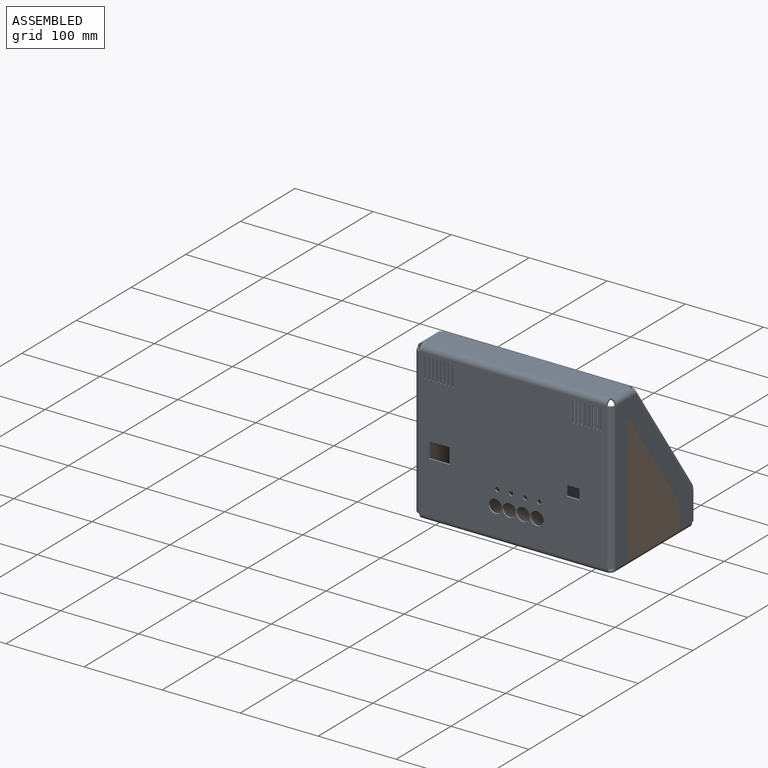
[diagram: assembled view]
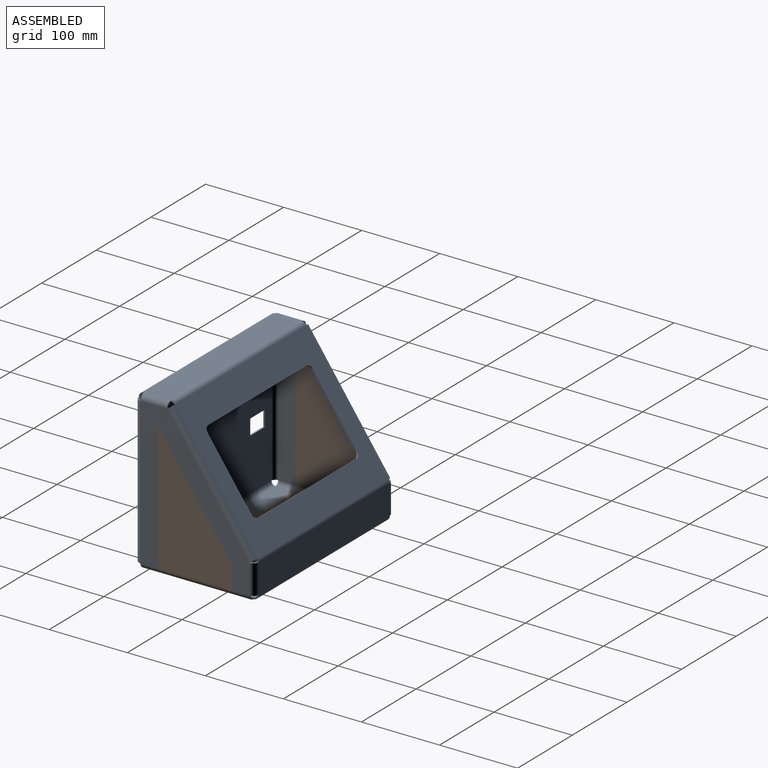
[diagram: assembled view, second angle]
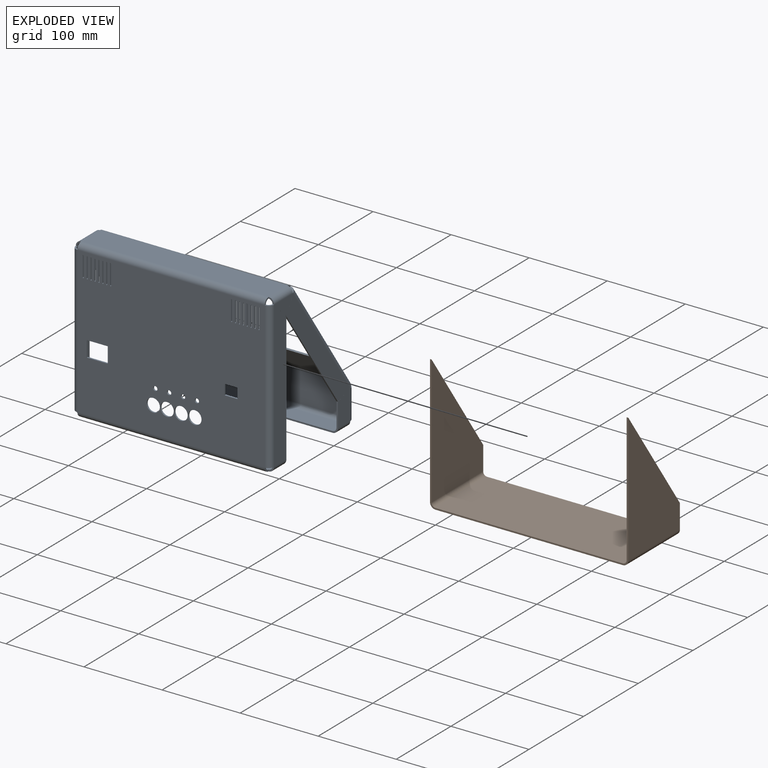
[diagram: exploded view]
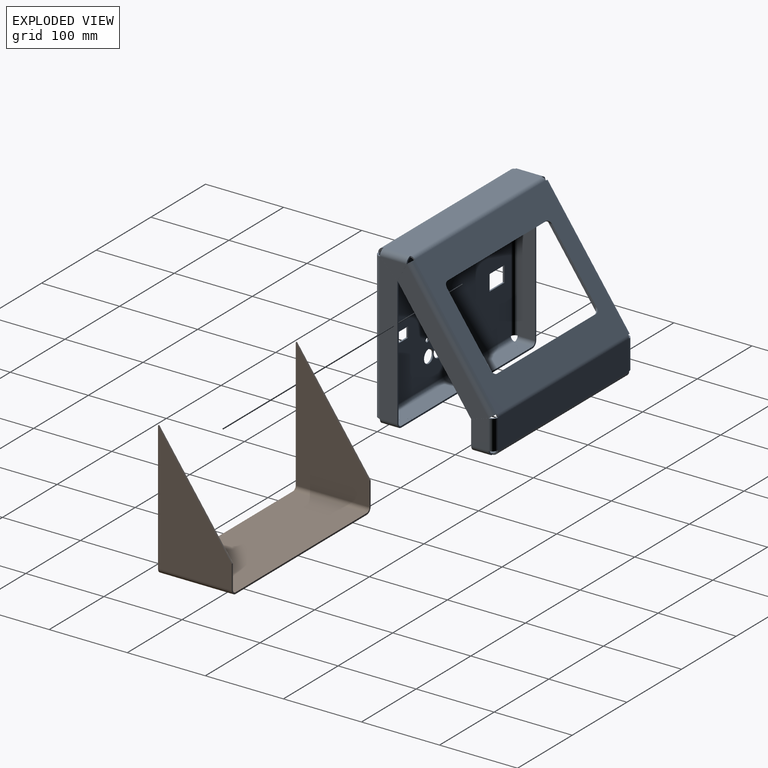
[diagram: exploded view, second angle]
ASSEMBLY  parts=2 mates=3
PART A: 246 faces, bbox 254x153.5x202 mm
  f0: plane 2x0.01mm, normal (0,0,-1), area 0mm2, adj f84,f85,f217,f242
  f1: plane 2x0.01mm, normal (-1,0,0), area 0mm2, adj f84,f85,f200,f216
  f2: plane 25x2mm, normal (1,0,0), area 50mm2, adj f3,f83,f84,f85
  f3: cylinder r=0.75mm len=2mm, axis (0,1,0), area 4.7mm2, adj f2,f4,f84,f85
  f4: plane 25x2mm, normal (-1,0,0), area 50mm2, adj f3,f83,f84,f85
  f5: plane 25x2mm, normal (1,0,0), area 50mm2, adj f6,f82,f84,f85
  f6: cylinder r=0.75mm len=2mm, axis (0,1,0), area 4.7mm2, adj f5,f7,f84,f85
  f7: plane 25x2mm, normal (-1,0,0), area 50mm2, adj f6,f82,f84,f85
  f8: plane 25x2mm, normal (1,0,0), area 50mm2, adj f9,f81,f84,f85
  f9: cylinder r=0.75mm len=2mm, axis (0,1,0), area 4.7mm2, adj f8,f10,f84,f85
  f10: plane 25x2mm, normal (-1,0,0), area 50mm2, adj f9,f81,f84,f85
  f11: plane 25x2mm, normal (1,0,0), area 50mm2, adj f12,f80,f84,f85
  f12: cylinder r=0.75mm len=2mm, axis (0,1,0), area 4.7mm2, adj f11,f13,f84,f85
  f13: plane 25x2mm, normal (-1,0,0), area 50mm2, adj f12,f80,f84,f85
  f14: plane 25x2mm, normal (1,0,0), area 50mm2, adj f15,f79,f84,f85
  f15: cylinder r=0.75mm len=2mm, axis (0,1,0), area 4.7mm2, adj f14,f16,f84,f85
  f16: plane 25x2mm, normal (-1,0,0), area 50mm2, adj f15,f79,f84,f85
  f17: plane 25x2mm, normal (1,0,0), area 50mm2, adj f18,f78,f84,f85
  f18: cylinder r=0.75mm len=2mm, axis (0,1,0), area 4.7mm2, adj f17,f19,f84,f85
  f19: plane 25x2mm, normal (-1,0,0), area 50mm2, adj f18,f78,f84,f85
  f20: plane 25x2mm, normal (1,0,0), area 50mm2, adj f21,f77,f84,f85
  f21: cylinder r=0.75mm len=2mm, axis (0,1,0), area 4.7mm2, adj f20,f22,f84,f85
  f22: plane 25x2mm, normal (-1,0,0), area 50mm2, adj f21,f77,f84,f85
  f23: plane 25x2mm, normal (1,0,0), area 50mm2, adj f24,f76,f84,f85
  f24: cylinder r=0.75mm len=2mm, axis (0,1,0), area 4.7mm2, adj f23,f25,f84,f85
  f25: plane 25x2mm, normal (-1,0,0), area 50mm2, adj f24,f76,f84,f85
  f26: cylinder r=0.75mm len=2mm, axis (0,1,0), area 4.7mm2, adj f27,f75,f84,f85
  f27: plane 25x2mm, normal (1,0,0), area 50mm2, adj f26,f28,f84,f85
  f28: cylinder r=0.75mm len=2mm, axis (0,1,0), area 4.7mm2, adj f27,f75,f84,f85
  f29: plane 25x2mm, normal (-1,0,0), area 50mm2, adj f30,f74,f84,f85
  f30: cylinder r=0.75mm len=2mm, axis (0,1,0), area 4.7mm2, adj f29,f31,f84,f85
  f31: plane 25x2mm, normal (1,0,0), area 50mm2, adj f30,f74,f84,f85
  f32: plane 25x2mm, normal (1,0,0), area 50mm2, adj f33,f73,f84,f85
  f33: cylinder r=0.75mm len=2mm, axis (0,1,0), area 4.7mm2, adj f32,f34,f84,f85
  f34: plane 25x2mm, normal (-1,0,0), area 50mm2, adj f33,f73,f84,f85
  f35: plane 25x2mm, normal (-1,0,0), area 50mm2, adj f36,f72,f84,f85
  f36: cylinder r=0.75mm len=2mm, axis (0,1,0), area 4.7mm2, adj f35,f37,f84,f85
  f37: plane 25x2mm, normal (1,0,0), area 50mm2, adj f36,f72,f84,f85
  f38: plane 13.21x2mm, normal (1,0,0), area 26.4mm2, adj f39,f71,f84,f85
  f39: plane 16.51x2mm, normal (0,0,1), area 33mm2, adj f38,f40,f84,f85
  f40: plane 13.21x2mm, normal (-1,0,0), area 26.4mm2, adj f39,f71,f84,f85
  f41: plane 25x2mm, normal (1,0,0), area 50mm2, adj f42,f70,f84,f85
  f42: cylinder r=0.75mm len=2mm, axis (0,1,0), area 4.7mm2, adj f41,f43,f84,f85
  f43: plane 25x2mm, normal (-1,0,0), area 50mm2, adj f42,f70,f84,f85
  f44: plane 25x2mm, normal (1,0,0), area 50mm2, adj f45,f69,f84,f85
  f45: cylinder r=0.75mm len=2mm, axis (0,1,0), area 4.7mm2, adj f44,f46,f84,f85
  f46: plane 25x2mm, normal (-1,0,0), area 50mm2, adj f45,f69,f84,f85
  f47: plane 25x2mm, normal (-1,0,0), area 50mm2, adj f48,f68,f84,f85
  f48: cylinder r=0.75mm len=2mm, axis (0,1,0), area 4.7mm2, adj f47,f49,f84,f85
  f49: plane 25x2mm, normal (1,0,0), area 50mm2, adj f48,f68,f84,f85
  f50: plane 25x2mm, normal (1,0,0), area 50mm2, adj f51,f67,f84,f85
  f51: cylinder r=0.75mm len=2mm, axis (0,1,0), area 4.7mm2, adj f50,f52,f84,f85
  f52: plane 25x2mm, normal (-1,0,0), area 50mm2, adj f51,f67,f84,f85
  f53: plane 20.2x2mm, normal (1,0,0), area 40.4mm2, adj f54,f66,f84,f85
  f54: plane 26.9x2mm, normal (0,0,1), area 53.8mm2, adj f53,f55,f84,f85
  f55: plane 20.2x2mm, normal (-1,0,0), area 40.4mm2, adj f54,f66,f84,f85
  f56: plane 2x0.01mm, normal (1,0,0), area 0mm2, adj f84,f85,f199,f234
  f57: cylinder r=8.5mm len=17mm, axis (0,1,0), area 106.8mm2, adj f84,f85
  f58: cylinder r=2.75mm len=5.5mm, axis (0,1,0), area 34.6mm2, adj f84,f85
  f59: cylinder r=2.75mm len=5.5mm, axis (0,1,0), area 34.6mm2, adj f84,f85
  f60: cylinder r=2.75mm len=5.5mm, axis (0,1,0), area 34.6mm2, adj f84,f85
  f61: cylinder r=8.5mm len=17mm, axis (0,1,0), area 106.8mm2, adj f84,f85
  f62: cylinder r=8.5mm len=17mm, axis (0,1,0), area 106.8mm2, adj f84,f85
  f63: cylinder r=8.5mm len=17mm, axis (0,1,0), area 106.8mm2, adj f84,f85
  f64: cylinder r=2.75mm len=5.5mm, axis (0,1,0), area 34.6mm2, adj f84,f85
  f65: plane 2x0.01mm, normal (0,0,-1), area 0mm2, adj f84,f85,f233,f243
  f66: plane 26.9x2mm, normal (0,0,-1), area 53.8mm2, adj f53,f55,f84,f85
  f67: cylinder r=0.75mm len=2mm, axis (0,1,0), area 4.7mm2, adj f50,f52,f84,f85
  f68: cylinder r=0.75mm len=2mm, axis (0,1,0), area 4.7mm2, adj f47,f49,f84,f85
  f69: cylinder r=0.75mm len=2mm, axis (0,1,0), area 4.7mm2, adj f44,f46,f84,f85
  f70: cylinder r=0.75mm len=2mm, axis (0,1,0), area 4.7mm2, adj f41,f43,f84,f85
  f71: plane 16.51x2mm, normal (0,0,-1), area 33mm2, adj f38,f40,f84,f85
  f72: cylinder r=0.75mm len=2mm, axis (0,1,0), area 4.7mm2, adj f35,f37,f84,f85
  f73: cylinder r=0.75mm len=2mm, axis (0,1,0), area 4.7mm2, adj f32,f34,f84,f85
  f74: cylinder r=0.75mm len=2mm, axis (0,1,0), area 4.7mm2, adj f29,f31,f84,f85
  f75: plane 25x2mm, normal (-1,0,0), area 50mm2, adj f26,f28,f84,f85
  f76: cylinder r=0.75mm len=2mm, axis (0,1,0), area 4.7mm2, adj f23,f25,f84,f85
  f77: cylinder r=0.75mm len=2mm, axis (0,1,0), area 4.7mm2, adj f20,f22,f84,f85
  f78: cylinder r=0.75mm len=2mm, axis (0,1,0), area 4.7mm2, adj f17,f19,f84,f85
  f79: cylinder r=0.75mm len=2mm, axis (0,1,0), area 4.7mm2, adj f14,f16,f84,f85
  f80: cylinder r=0.75mm len=2mm, axis (0,1,0), area 4.7mm2, adj f11,f13,f84,f85
  f81: cylinder r=0.75mm len=2mm, axis (0,1,0), area 4.7mm2, adj f8,f10,f84,f85
  f82: cylinder r=0.75mm len=2mm, axis (0,1,0), area 4.7mm2, adj f5,f7,f84,f85
  f83: cylinder r=0.75mm len=2mm, axis (0,1,0), area 4.7mm2, adj f2,f4,f84,f85
  f84: plane 240x188mm, normal (0,1,0), area 42727.3mm2, adj f0,f1,f2,f3,f4,f5,f6,f7
  f85: plane 240x188mm, normal (0,-1,0), area 42727.3mm2, adj f0,f1,f2,f3,f4,f5,f6,f7
  f86: plane 2x0.01mm, normal (1,0,0), area 0mm2, adj f90,f91,f195,f199
  f87: plane 2x0.01mm, normal (-1,0,0), area 0mm2, adj f90,f91,f178,f186
  f88: plane 2x0.01mm, normal (-1,0,0), area 0mm2, adj f90,f91,f187,f200
  f89: plane 2x0.01mm, normal (1,0,0), area 0mm2, adj f90,f91,f177,f196
  f90: plane 240x34.36mm, normal (0,0,-1), area 8245.4mm2, adj f86,f87,f88,f89,f180,f189,f198,f202
  f91: plane 240x34.36mm, normal (0,0,1), area 8245.4mm2, adj f86,f87,f88,f89,f179,f188,f197,f201
  f92: plane 1.64x1.16mm, normal (1,0,0), area 0mm2, adj f104,f105,f173,f177
  f93: plane 1.64x1.16mm, normal (-1,0,0), area 0mm2, adj f104,f105,f156,f164
  f94: cylinder r=6.5mm len=6.5mm, axis (0,-0.82,-0.57), area 20.4mm2, adj f95,f103,f104,f105
  f95: plane 179.96x1.64mm, normal (0,0.57,-0.82), area 359.9mm2, adj f94,f96,f104,f105
  f96: cylinder r=6.5mm len=6.5mm, axis (0,-0.82,-0.57), area 20.4mm2, adj f95,f97,f104,f105
  f97: plane 81.23x57.71mm, normal (-1,0,0), area 195.5mm2, adj f96,f98,f104,f105
  f98: cylinder r=6.5mm len=6.5mm, axis (0,-0.82,-0.57), area 20.4mm2, adj f97,f99,f104,f105
  f99: plane 179.96x1.64mm, normal (0,-0.57,0.82), area 359.9mm2, adj f98,f100,f104,f105
  f100: cylinder r=6.5mm len=6.5mm, axis (0,-0.82,-0.57), area 20.4mm2, adj f99,f103,f104,f105
  f101: plane 1.64x1.16mm, normal (-1,0,0), area 0mm2, adj f104,f105,f165,f178
  f102: plane 1.64x1.16mm, normal (1,0,0), area 0mm2, adj f104,f105,f155,f174
  f103: plane 81.23x57.71mm, normal (1,0,0), area 195.5mm2, adj f94,f100,f104,f105
  f104: plane 240x150.21mm, normal (0,-0.82,-0.57), area 22672.6mm2, adj f92,f93,f94,f95,f96,f97,f98,f99
  f105: plane 240x150.21mm, normal (0,0.82,0.57), area 22672.6mm2, adj f92,f93,f94,f95,f96,f97,f98,f99
  f106: plane 2x0.01mm, normal (0,0,-1), area 0mm2, adj f110,f111,f143,f151
  f107: plane 2x0.01mm, normal (1,0,0), area 0mm2, adj f110,f111,f142,f155
  f108: plane 2x0.01mm, normal (-1,0,0), area 0mm2, adj f110,f111,f126,f156
  f109: plane 2x0.01mm, normal (0,0,-1), area 0mm2, adj f110,f111,f125,f152
  f110: plane 240x37.79mm, normal (0,-1,0), area 9070.3mm2, adj f106,f107,f108,f109,f128,f145,f154,f158
  f111: plane 240x37.79mm, normal (0,1,0), area 9070.3mm2, adj f106,f107,f108,f109,f127,f144,f153,f157
  f112: plane 2x0.01mm, normal (0,0,-1), area 0mm2, adj f115,f116,f121,f125
  f113: plane 30.69x2mm, normal (0,-1,0), area 61.4mm2, adj f114,f115,f116,f122
  f114: plane 22.5x7.09mm, normal (0,-0.3,0.95), area 47.2mm2, adj f113,f115,f116,f126
  f115: plane 37.78x22.5mm, normal (1,0,0), area 770.3mm2, adj f112,f113,f114,f124,f128
  f116: plane 37.78x22.5mm, normal (-1,0,0), area 770.3mm2, adj f112,f113,f114,f123,f127
  f117: plane 22.49x22.49mm, normal (0.71,0.71,0), area 63.6mm2, adj f118,f119,f120,f121
  f118: plane 22.49x2mm, normal (0,-1,0), area 45mm2, adj f117,f119,f120,f122
  f119: plane 22.49x22.49mm, normal (0,0,1), area 252.8mm2, adj f117,f118,f124
  f120: plane 22.49x22.49mm, normal (0,0,-1), area 252.8mm2, adj f117,f118,f123
  f121: plane 7x7mm, normal (0,1,0), area 18.8mm2, adj f112,f117,f123,f124
  f122: plane 7x7mm, normal (0,-1,0), area 18.8mm2, adj f113,f118,f123,f124
  f123: cylinder r=7mm len=22.49mm, axis (0,1,0), area 247.2mm2, adj f116,f120,f121,f122
  f124: cylinder r=5mm len=22.49mm, axis (0,1,0), area 176.6mm2, adj f115,f119,f121,f122
  f125: plane 7x7mm, normal (0,0,-1), area 18.8mm2, adj f109,f112,f127,f128
  f126: plane 7x7mm, normal (0,0,1), area 18.8mm2, adj f108,f114,f127,f128
  f127: cylinder r=7mm len=37.78mm, axis (0,0,-1), area 415.4mm2, adj f111,f116,f125,f126
  f128: cylinder r=5mm len=37.78mm, axis (0,0,-1), area 296.7mm2, adj f110,f115,f125,f126
  f129: plane 30.69x2mm, normal (0,-1,0), area 61.4mm2, adj f130,f132,f133,f138
  f130: plane 22.5x7.09mm, normal (0,-0.3,0.95), area 47.2mm2, adj f129,f132,f133,f142
  f131: plane 2x0.01mm, normal (0,0,-1), area 0mm2, adj f132,f133,f139,f143
  f132: plane 37.78x22.5mm, normal (-1,0,0), area 770.3mm2, adj f129,f130,f131,f141,f145
  f133: plane 37.78x22.5mm, normal (1,0,0), area 770.3mm2, adj f129,f130,f131,f140,f144
  f134: plane 22.49x2mm, normal (0,-1,0), area 45mm2, adj f135,f136,f137,f138
  f135: plane 22.49x22.49mm, normal (-0.71,0.71,0), area 63.6mm2, adj f134,f136,f137,f139
  f136: plane 22.49x22.49mm, normal (0,0,1), area 252.8mm2, adj f134,f135,f141
  f137: plane 22.49x22.49mm, normal (0,0,-1), area 252.8mm2, adj f134,f135,f140
  f138: plane 7x7mm, normal (0,-1,0), area 18.8mm2, adj f129,f134,f140,f141
  f139: plane 7x7mm, normal (0,1,0), area 18.8mm2, adj f131,f135,f140,f141
  f140: cylinder r=7mm len=22.49mm, axis (0,-1,0), area 247.2mm2, adj f133,f137,f138,f139
  f141: cylinder r=5mm len=22.49mm, axis (0,-1,0), area 176.6mm2, adj f132,f136,f138,f139
  f142: plane 7x7mm, normal (0,0,1), area 18.8mm2, adj f107,f130,f144,f145
  f143: plane 7x7mm, normal (0,0,-1), area 18.8mm2, adj f106,f131,f144,f145
  f144: cylinder r=7mm len=37.78mm, axis (0,0,1), area 415.4mm2, adj f111,f133,f142,f143
  f145: cylinder r=5mm len=37.78mm, axis (0,0,1), area 296.7mm2, adj f110,f132,f142,f143
  f146: plane 194.97x2mm, normal (0,-1,0), area 389.9mm2, adj f147,f148,f149,f150
  f147: plane 22.5x22.5mm, normal (0.71,-0.71,0), area 63.6mm2, adj f146,f149,f150,f151
  f148: plane 22.5x22.5mm, normal (-0.71,-0.71,0), area 63.6mm2, adj f146,f149,f150,f152
  f149: plane 239.97x22.5mm, normal (0,0,1), area 4893.1mm2, adj f146,f147,f148,f154
  f150: plane 239.97x22.5mm, normal (0,0,-1), area 4893.1mm2, adj f146,f147,f148,f153
  f151: plane 7x7mm, normal (1,0,0), area 18.8mm2, adj f106,f147,f153,f154
  f152: plane 7x7mm, normal (-1,0,0), area 18.8mm2, adj f109,f148,f153,f154
  f153: cylinder r=7mm len=239.97mm, axis (1,0,0), area 2638.6mm2, adj f111,f150,f151,f152
  f154: cylinder r=5mm len=239.97mm, axis (1,0,0), area 1884.7mm2, adj f110,f149,f151,f152
  f155: plane 4.02x2.9mm, normal (1,0,0), area 7.3mm2, adj f102,f107,f157,f158
  f156: plane 4.02x2.9mm, normal (-1,0,0), area 7.3mm2, adj f93,f108,f157,f158
  f157: cylinder r=7mm len=240mm, axis (1,0,0), area 1026.3mm2, adj f105,f111,f155,f156
  f158: cylinder r=5mm len=240mm, axis (1,0,0), area 733mm2, adj f104,f110,f155,f156
  f159: plane 134.78x94.38mm, normal (0,-0.82,-0.57), area 329.1mm2, adj f160,f161,f162,f163
  f160: plane 22.5x7.09mm, normal (0,0.3,-0.95), area 47.2mm2, adj f159,f162,f163,f164
  f161: plane 22.5x11.71mm, normal (0,-0.89,0.46), area 50.7mm2, adj f159,f162,f163,f165
  f162: plane 157.28x116.88mm, normal (1,0,0), area 3913.7mm2, adj f159,f160,f161,f167
  f163: plane 157.28x116.88mm, normal (-1,0,0), area 3913.7mm2, adj f159,f160,f161,f166
  f164: plane 7x5.73mm, normal (0,0.57,-0.82), area 18.8mm2, adj f93,f160,f166,f167
  f165: plane 7x5.73mm, normal (0,-0.57,0.82), area 18.8mm2, adj f101,f161,f166,f167
  f166: cylinder r=7mm len=154.2mm, axis (0,0.57,-0.82), area 2016mm2, adj f105,f163,f164,f165
  f167: cylinder r=5mm len=153.06mm, axis (0,0.57,-0.82), area 1440mm2, adj f104,f162,f164,f165
  f168: plane 134.78x94.38mm, normal (0,-0.82,-0.57), area 329.1mm2, adj f169,f170,f171,f172
  f169: plane 22.5x11.71mm, normal (0,-0.89,0.46), area 50.7mm2, adj f168,f171,f172,f173
  f170: plane 22.5x7.09mm, normal (0,0.3,-0.95), area 47.2mm2, adj f168,f171,f172,f174
  f171: plane 157.28x116.88mm, normal (-1,0,0), area 3913.7mm2, adj f168,f169,f170,f176
  f172: plane 157.28x116.88mm, normal (1,0,0), area 3913.7mm2, adj f168,f169,f170,f175
  f173: plane 7x5.73mm, normal (0,-0.57,0.82), area 18.8mm2, adj f92,f169,f175,f176
  f174: plane 7x5.73mm, normal (0,0.57,-0.82), area 18.8mm2, adj f102,f170,f175,f176
  f175: cylinder r=7mm len=154.2mm, axis (0,-0.57,0.82), area 2016mm2, adj f105,f172,f173,f174
  f176: cylinder r=5mm len=153.06mm, axis (0,-0.57,0.82), area 1440mm2, adj f104,f171,f173,f174
  f177: plane 5.73x4.13mm, normal (1,0,0), area 11.5mm2, adj f89,f92,f179,f180
  f178: plane 5.73x4.13mm, normal (-1,0,0), area 11.5mm2, adj f87,f101,f179,f180
  f179: cylinder r=7mm len=240mm, axis (1,0,0), area 1612.7mm2, adj f91,f105,f177,f178
  f180: cylinder r=5mm len=240mm, axis (1,0,0), area 1151.9mm2, adj f90,f104,f177,f178
  f181: plane 2x0.12mm, normal (0,0,-1), area 0.2mm2, adj f182,f183,f184,f185
  f182: plane 22.5x11.71mm, normal (0,0.89,-0.46), area 50.7mm2, adj f181,f184,f185,f186
  f183: plane 22.5x22.5mm, normal (0,-0.71,-0.71), area 63.6mm2, adj f181,f184,f185,f187
  f184: plane 34.33x22.5mm, normal (1,0,0), area 387.5mm2, adj f181,f182,f183,f189
  f185: plane 34.33x22.5mm, normal (-1,0,0), area 387.5mm2, adj f181,f182,f183,f188
  f186: plane 7x7mm, normal (0,1,0), area 18.8mm2, adj f87,f182,f188,f189
  f187: plane 7x7mm, normal (0,-1,0), area 18.8mm2, adj f88,f183,f188,f189
  f188: cylinder r=7mm len=34.33mm, axis (0,1,0), area 377.5mm2, adj f91,f185,f186,f187
  f189: cylinder r=5mm len=34.33mm, axis (0,1,0), area 269.6mm2, adj f90,f184,f186,f187
  f190: plane 2x0.12mm, normal (0,0,-1), area 0.2mm2, adj f191,f192,f193,f194
  f191: plane 22.5x22.5mm, normal (0,-0.71,-0.71), area 63.6mm2, adj f190,f193,f194,f195
  f192: plane 22.5x11.71mm, normal (0,0.89,-0.46), area 50.7mm2, adj f190,f193,f194,f196
  f193: plane 34.33x22.5mm, normal (-1,0,0), area 387.5mm2, adj f190,f191,f192,f198
  f194: plane 34.33x22.5mm, normal (1,0,0), area 387.5mm2, adj f190,f191,f192,f197
  f195: plane 7x7mm, normal (0,-1,0), area 18.8mm2, adj f86,f191,f197,f198
  f196: plane 7x7mm, normal (0,1,0), area 18.8mm2, adj f89,f192,f197,f198
  f197: cylinder r=7mm len=34.33mm, axis (0,-1,0), area 377.5mm2, adj f91,f194,f195,f196
  f198: cylinder r=5mm len=34.33mm, axis (0,-1,0), area 269.6mm2, adj f90,f193,f195,f196
  f199: plane 7x7mm, normal (1,0,0), area 18.8mm2, adj f56,f86,f201,f202
  f200: plane 7x7mm, normal (-1,0,0), area 18.8mm2, adj f1,f88,f201,f202
  f201: cylinder r=7mm len=240mm, axis (1,0,0), area 2638.9mm2, adj f85,f91,f199,f200
  f202: cylinder r=5mm len=240mm, axis (1,0,0), area 1885mm2, adj f84,f90,f199,f200
  f203: plane 165.49x2mm, normal (0,1,0), area 331mm2, adj f204,f206,f207,f212
  f204: plane 22.5x22.5mm, normal (0,0.71,0.71), area 63.6mm2, adj f203,f206,f207,f216
  f205: plane 2x0.01mm, normal (0,0,-1), area 0mm2, adj f206,f207,f213,f217
  f206: plane 187.99x22.5mm, normal (1,0,0), area 3976.6mm2, adj f203,f204,f205,f215,f219
  f207: plane 187.99x22.5mm, normal (-1,0,0), area 3976.6mm2, adj f203,f204,f205,f214,f218
  f208: plane 22.49x2mm, normal (0,1,0), area 45mm2, adj f209,f210,f211,f212
  f209: plane 22.49x22.49mm, normal (0.71,-0.71,0), area 63.6mm2, adj f208,f210,f211,f213
  f210: plane 22.49x22.49mm, normal (0,0,1), area 252.8mm2, adj f208,f209,f215
  f211: plane 22.49x22.49mm, normal (0,0,-1), area 252.8mm2, adj f208,f209,f214
  f212: plane 7x7mm, normal (0,1,0), area 18.8mm2, adj f203,f208,f214,f215
  f213: plane 7x7mm, normal (0,-1,0), area 18.8mm2, adj f205,f209,f214,f215
  f214: cylinder r=7mm len=22.49mm, axis (0,1,0), area 247.2mm2, adj f207,f211,f212,f213
  f215: cylinder r=5mm len=22.49mm, axis (0,1,0), area 176.6mm2, adj f206,f210,f212,f213
  f216: plane 7x7mm, normal (0,0,1), area 18.8mm2, adj f1,f204,f218,f219
  f217: plane 7x7mm, normal (0,0,-1), area 18.8mm2, adj f0,f205,f218,f219
  f218: cylinder r=7mm len=187.99mm, axis (0,0,1), area 2067mm2, adj f85,f207,f216,f217
  f219: cylinder r=5mm len=187.99mm, axis (0,0,1), area 1476.4mm2, adj f84,f206,f216,f217
  f220: plane 2x0.01mm, normal (0,0,-1), area 0mm2, adj f223,f224,f229,f233
  f221: plane 165.49x2mm, normal (0,1,0), area 331mm2, adj f222,f223,f224,f230
  f222: plane 22.5x22.5mm, normal (0,0.71,0.71), area 63.6mm2, adj f221,f223,f224,f234
  f223: plane 187.99x22.5mm, normal (-1,0,0), area 3976.6mm2, adj f220,f221,f222,f232,f236
  f224: plane 187.99x22.5mm, normal (1,0,0), area 3976.6mm2, adj f220,f221,f222,f231,f235
  f225: plane 22.49x22.49mm, normal (-0.71,-0.71,0), area 63.6mm2, adj f226,f227,f228,f229
  f226: plane 22.49x2mm, normal (0,1,0), area 45mm2, adj f225,f227,f228,f230
  f227: plane 22.49x22.49mm, normal (0,0,1), area 252.8mm2, adj f225,f226,f232
  f228: plane 22.49x22.49mm, normal (0,0,-1), area 252.8mm2, adj f225,f226,f231
  f229: plane 7x7mm, normal (0,-1,0), area 18.8mm2, adj f220,f225,f231,f232
  f230: plane 7x7mm, normal (0,1,0), area 18.8mm2, adj f221,f226,f231,f232
  f231: cylinder r=7mm len=22.49mm, axis (0,-1,0), area 247.2mm2, adj f224,f228,f229,f230
  f232: cylinder r=5mm len=22.49mm, axis (0,-1,0), area 176.6mm2, adj f223,f227,f229,f230
  f233: plane 7x7mm, normal (0,0,-1), area 18.8mm2, adj f65,f220,f235,f236
  f234: plane 7x7mm, normal (0,0,1), area 18.8mm2, adj f56,f222,f235,f236
  f235: cylinder r=7mm len=187.99mm, axis (0,0,-1), area 2067mm2, adj f85,f224,f233,f234
  f236: cylinder r=5mm len=187.99mm, axis (0,0,-1), area 1476.4mm2, adj f84,f223,f233,f234
  f237: plane 194.97x2mm, normal (0,1,0), area 389.9mm2, adj f238,f239,f240,f241
  f238: plane 22.5x22.5mm, normal (-0.71,0.71,0), area 63.6mm2, adj f237,f240,f241,f242
  f239: plane 22.5x22.5mm, normal (0.71,0.71,0), area 63.6mm2, adj f237,f240,f241,f243
  f240: plane 239.97x22.5mm, normal (0,0,1), area 4893.1mm2, adj f237,f238,f239,f245
  f241: plane 239.97x22.5mm, normal (0,0,-1), area 4893.1mm2, adj f237,f238,f239,f244
  f242: plane 7x7mm, normal (-1,0,0), area 18.8mm2, adj f0,f238,f244,f245
  f243: plane 7x7mm, normal (1,0,0), area 18.8mm2, adj f65,f239,f244,f245
  f244: cylinder r=7mm len=239.97mm, axis (-1,0,0), area 2638.6mm2, adj f85,f241,f242,f243
  f245: cylinder r=5mm len=239.97mm, axis (-1,0,0), area 1884.7mm2, adj f84,f240,f242,f243
PART B: 24 faces, bbox 254x94.5x172.5 mm
  f0: plane 30.7x2mm, normal (0,1,0), area 61.4mm2, adj f1,f4,f5,f20
  f1: plane 134.79x94.39mm, normal (0,0.82,0.57), area 329.1mm2, adj f0,f2,f4,f5
  f2: plane 2x0.14mm, normal (0,0,1), area 0.3mm2, adj f1,f3,f4,f5
  f3: plane 165.49x2mm, normal (0,-1,0), area 331mm2, adj f2,f4,f5,f21
  f4: plane 165.49x94.53mm, normal (1,0,0), area 9281.7mm2, adj f0,f1,f2,f3,f22
  f5: plane 165.49x94.53mm, normal (-1,0,0), area 9281.7mm2, adj f0,f1,f2,f3,f23
  f6: plane 240x2mm, normal (0,1,0), area 480mm2, adj f8,f9,f16,f20
  f7: plane 240x2mm, normal (0,-1,0), area 480mm2, adj f8,f9,f17,f21
  f8: plane 240x94.53mm, normal (0,0,-1), area 22686.9mm2, adj f6,f7,f18,f22
  f9: plane 240x94.53mm, normal (0,0,1), area 22686.9mm2, adj f6,f7,f19,f23
  f10: plane 165.5x2mm, normal (0,-1,0), area 331mm2, adj f11,f14,f15,f17
  f11: plane 2x0.14mm, normal (0,0,1), area 0.3mm2, adj f10,f12,f14,f15
  f12: plane 134.8x94.39mm, normal (0,0.82,0.57), area 329.1mm2, adj f11,f13,f14,f15
  f13: plane 30.7x2mm, normal (0,1,0), area 61.4mm2, adj f12,f14,f15,f16
  f14: plane 165.5x94.53mm, normal (-1,0,0), area 9282.4mm2, adj f10,f11,f12,f13,f18
  f15: plane 165.5x94.53mm, normal (1,0,0), area 9282.4mm2, adj f10,f11,f12,f13,f19
  f16: plane 7x7mm, normal (0,1,0), area 18.8mm2, adj f6,f13,f18,f19
  f17: plane 7x7mm, normal (0,-1,0), area 18.8mm2, adj f7,f10,f18,f19
  f18: cylinder r=7mm len=94.53mm, axis (0,1,0), area 1039.4mm2, adj f8,f14,f16,f17
  f19: cylinder r=5mm len=94.53mm, axis (0,1,0), area 742.4mm2, adj f9,f15,f16,f17
  f20: plane 7x7mm, normal (0,1,0), area 18.8mm2, adj f0,f6,f22,f23
  f21: plane 7x7mm, normal (0,-1,0), area 18.8mm2, adj f3,f7,f22,f23
  f22: cylinder r=7mm len=94.53mm, axis (0,1,0), area 1039.4mm2, adj f4,f8,f20,f21
  f23: cylinder r=5mm len=94.53mm, axis (0,1,0), area 742.4mm2, adj f5,f9,f20,f21
PLACE A t=(-120.06,-7.8,14.92)mm
PLACE B t=(-120.06,-7.8,14.92)mm
MATE parallel B.f4 <-> A.f172  axis (1,0,0) through (131.94,58.13,76.74)mm
MATE parallel B.f8 <-> A.f241  axis (0,0,-1) through (4.94,68.96,12.92)mm
MATE parallel B.f3 <-> A.f221  axis (0,-1,0) through (130.94,21.7,102.66)mm
